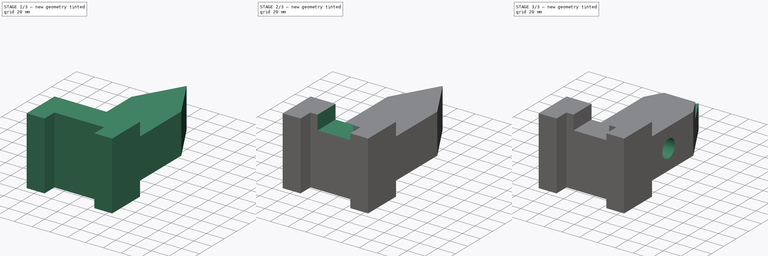
[diagram: build sequence overview — one tinted view per stage of 3, left to right]
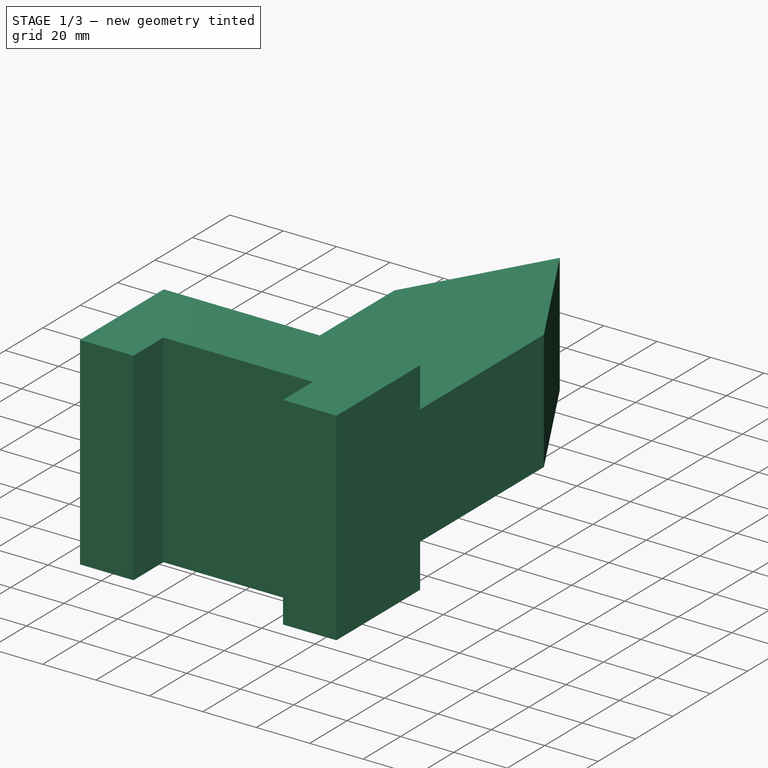
[diagram: stage 1 of 3 — iso view after this stage's code; geometry added in this stage tinted green]
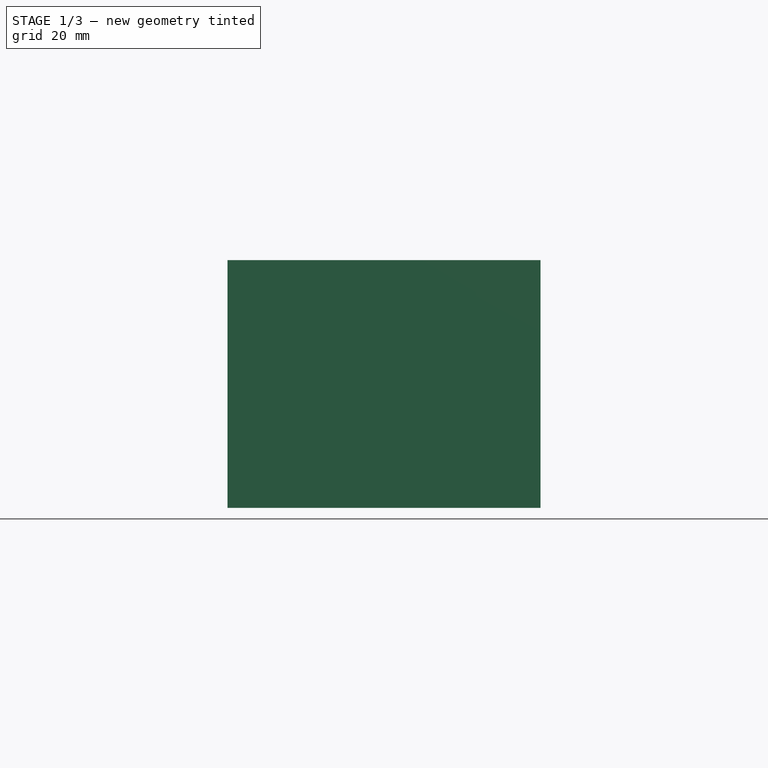
[diagram: stage 1 of 3 — front view after this stage's code; geometry added in this stage tinted green]
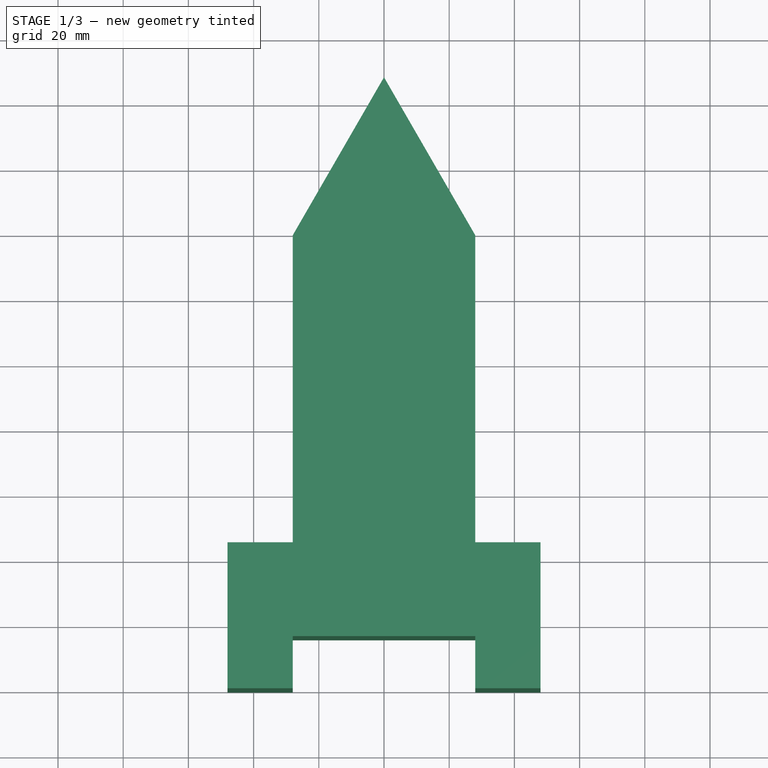
[diagram: stage 1 of 3 — top view after this stage's code; geometry added in this stage tinted green]
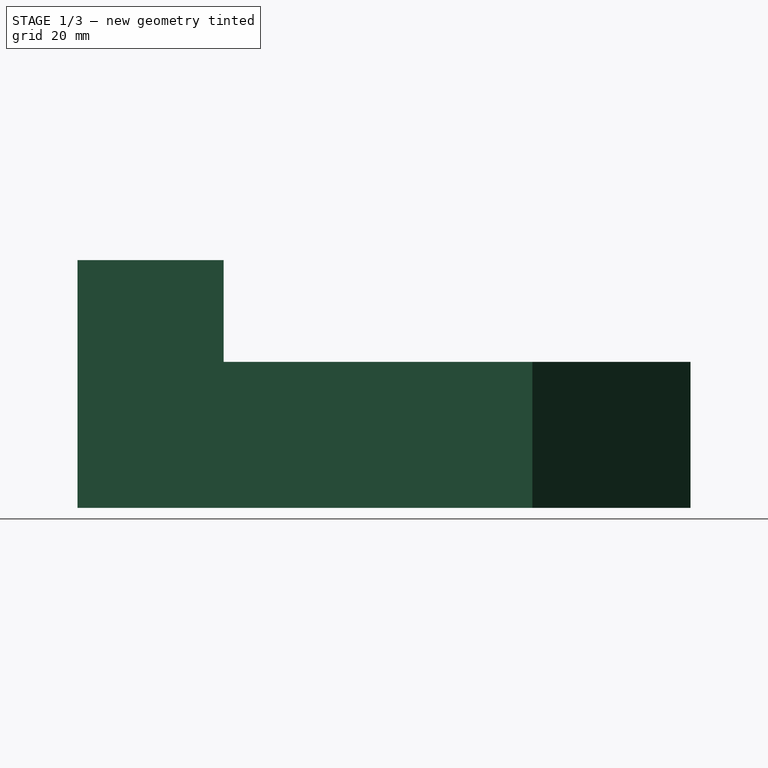
[diagram: stage 1 of 3 — right view after this stage's code; geometry added in this stage tinted green]
FCSTD DOCUMENT  (FreeCAD 0.18R4 (GitTag))
Label: Object12
License: All rights reserved
LicenseURL: http://en.wikipedia.org/wiki/All_rights_reserved
objects: Sketcher::SketchObject×5, PartDesign::Pocket×4, PartDesign::Pad×1, PartDesign::Plane×1, PartDesign::Body×1
note: 17 computed .brp shape members not serialized (recipe doc carries the construction recipe); baked Part::Feature solids carry a one-line shape summary decoded from their .brp

FEATURE [Sketcher::SketchObject] Sketch
  MapMode = 5
  Support = -> [XY_Plane]
  sketch-geometry (13):
    g0: LineSegment StartX=-48 StartY=44.8 StartZ=0 EndX=-48 EndY=0 EndZ=0
    g1: LineSegment StartX=-48 StartY=0 StartZ=0 EndX=-28 EndY=0 EndZ=0
    g2: LineSegment StartX=-28 StartY=0 StartZ=0 EndX=-28 EndY=16 EndZ=0
    g3: LineSegment StartX=-28 StartY=16 StartZ=0 EndX=28 EndY=16 EndZ=0
    g4: LineSegment StartX=28 StartY=16 StartZ=0 EndX=28 EndY=0 EndZ=0
    g5: LineSegment StartX=28 StartY=0 StartZ=0 EndX=48 EndY=0 EndZ=0
    g6: LineSegment StartX=48 StartY=0 StartZ=0 EndX=48 EndY=44.8 EndZ=0
    g7: LineSegment StartX=48 StartY=44.8 StartZ=0 EndX=28 EndY=44.8 EndZ=0
    g8: LineSegment StartX=28 StartY=44.8 StartZ=0 EndX=28 EndY=139.503 EndZ=0
    g9: LineSegment StartX=28 StartY=139.503 StartZ=0 EndX=0 EndY=188 EndZ=0
    g10: LineSegment StartX=0 StartY=188 StartZ=0 EndX=-28 EndY=139.503 EndZ=0
    g11: LineSegment StartX=-28 StartY=139.503 StartZ=0 EndX=-28 EndY=44.8 EndZ=0
    g12: LineSegment StartX=-28 StartY=44.8 StartZ=0 EndX=-48 EndY=44.8 EndZ=0
  constraints (35):
    c: Vertical(g0)
    c: Coincident(g0,g1)
    c: Coincident(g1,g2)
    c: Coincident(g2,g3)
    c: Horizontal(g3)
    c: Coincident(g3,g4)
    c: Vertical(g4)
    c: Coincident(g4,g5)
    c: Horizontal(g5)
    c: Coincident(g5,g6)
    c: Vertical(g6)
    c: Coincident(g6,g7)
    c: Horizontal(g7)
    c: Coincident(g7,g8)
    c: Vertical(g8)
    c: Coincident(g8,g9)
    c: PointOnObject(g9,g-2)
    c: Coincident(g9,g10)
    c: Coincident(g10,g11)
    c: Coincident(g11,g12)
    c: Coincident(g12,g0)
    c: Horizontal(g12)
    c: Vertical(g2)
    c: Symmetric(g0,g5,g-2)
    c: Symmetric(g1,g4,g-2)
    c: Symmetric(g11,g7,g-2)
    c: Symmetric(g10,g8,g-2)
    c: Angle(g10,g9) = 1.0472
    c: PointOnObject(g1,g-1)
    c: DistanceX(g0,g5) = 96
    c: DistanceX(g1,g4) = 56
    c: DistanceX(g11,g7) = 56
    c: DistanceY(g0,g9) = 188
    c: DistanceY(g0,g0) = 44.8
    c: DistanceY(g3,g6) = 28.8
FEATURE [PartDesign::Pad] Pad
  Length = 76
  Length2 = 100
  Profile = -> Sketch
  Type = 0
FEATURE [PartDesign::Plane] DatumPlane
  AttachmentOffset = pos=(0,0,-188) rot=(0,0,1;0rad)
  Length = 114.173
  MapMode = 5
  Placement = pos=(0,188,-4.17e-14) rot=(1,0,0;1.5708rad)
  ResizeMode = 0
  Support = -> [Pad]
  Width = 104.173
FEATURE [Sketcher::SketchObject] Sketch001
  MapMode = 5
  Placement = pos=(0,188,-4.17e-14) rot=(1,0,0;1.5708rad)
  Support = -> [DatumPlane]
  sketch-geometry (8):
    g0: LineSegment StartX=48 StartY=76 StartZ=0 EndX=-48 EndY=76 EndZ=0
    g1: LineSegment StartX=-48 StartY=76 StartZ=0 EndX=-48 EndY=0 EndZ=0
    g2: LineSegment StartX=-48 StartY=0 StartZ=0 EndX=-28 EndY=0 EndZ=0
    g3: LineSegment StartX=-28 StartY=0 StartZ=0 EndX=-28 EndY=44.8 EndZ=0
    g4: LineSegment StartX=-28 StartY=44.8 StartZ=0 EndX=28 EndY=44.8 EndZ=0
    g5: LineSegment StartX=28 StartY=44.8 StartZ=0 EndX=28 EndY=0 EndZ=0
    g6: LineSegment StartX=28 StartY=0 StartZ=0 EndX=48 EndY=0 EndZ=0
    g7: LineSegment StartX=48 StartY=0 StartZ=0 EndX=48 EndY=76 EndZ=0
  constraints (20):
    c: Coincident(g0,g1)
    c: Vertical(g1)
    c: Coincident(g1,g2)
    c: Horizontal(g2)
    c: Coincident(g2,g3)
    c: Vertical(g3)
    c: Coincident(g3,g4)
    c: Coincident(g4,g5)
    c: Coincident(g5,g6)
    c: Coincident(g6,g7)
    c: Coincident(g7,g0)
    c: Symmetric(g4,g3,g-2)
    c: Symmetric(g0,g0,g-2)
    c: Symmetric(g6,g1,g-2)
    c: Symmetric(g5,g2,g-2)
    c: DistanceY(g7,g7) = 76
    c: DistanceX(g4,g4) = 56
    c: DistanceY(g4,g0) = 31.2
    c: DistanceX(g0,g0) = 96
    c: PointOnObject(g6,g-1)
FEATURE [PartDesign::Pocket] Pocket
  BaseFeature = -> Pad
  Length = 143.2
  Length2 = 100
  Profile = -> Sketch001
  Reversed = true
  Type = 0
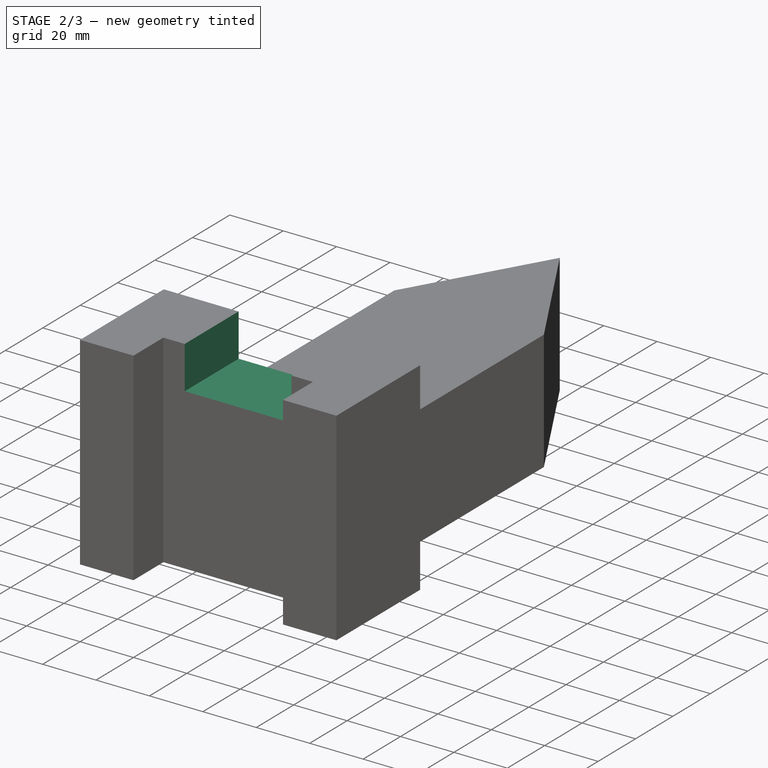
[diagram: stage 2 of 3 — iso view after this stage's code; geometry added in this stage tinted green]
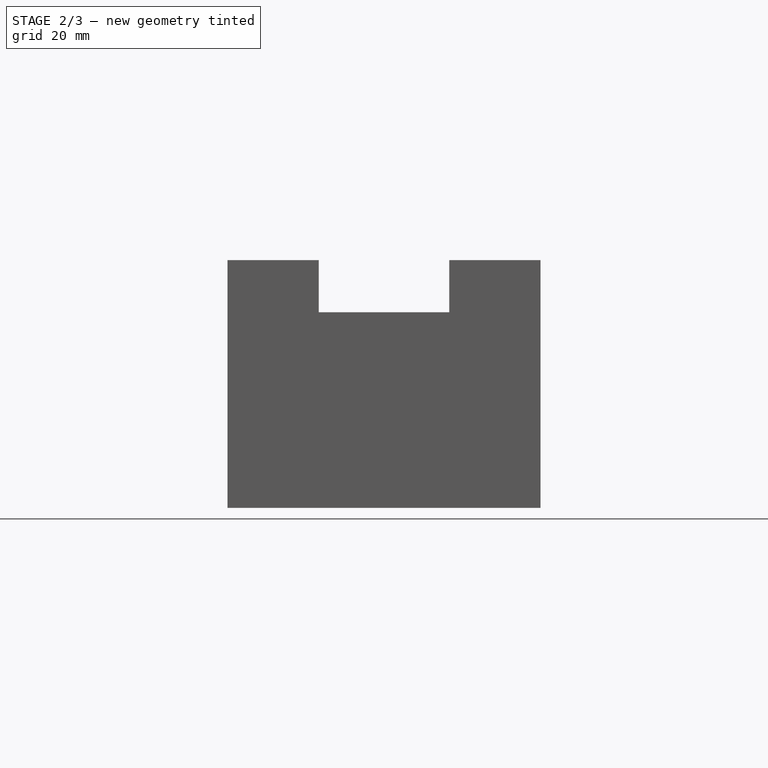
[diagram: stage 2 of 3 — front view after this stage's code; geometry added in this stage tinted green]
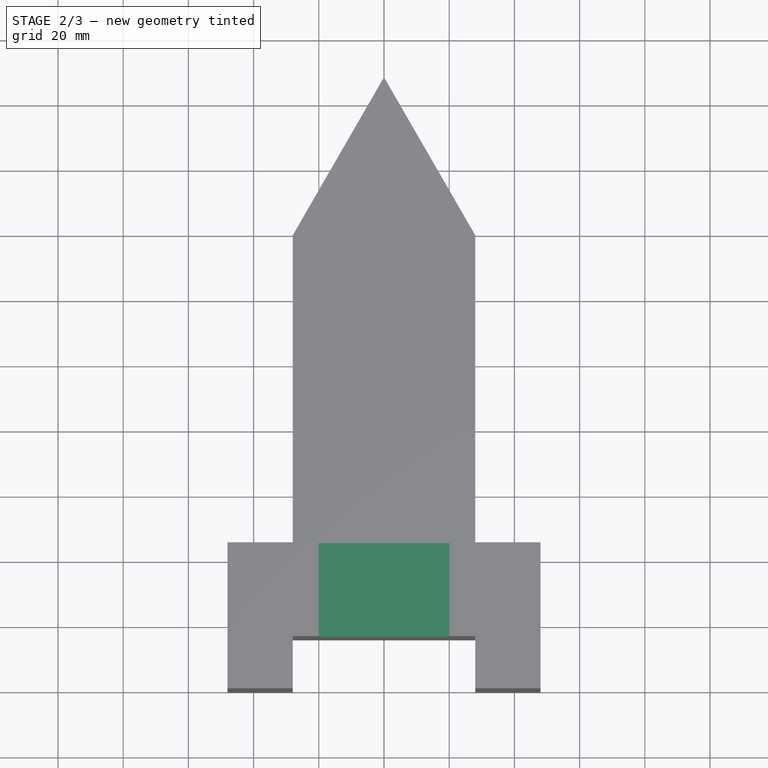
[diagram: stage 2 of 3 — top view after this stage's code; geometry added in this stage tinted green]
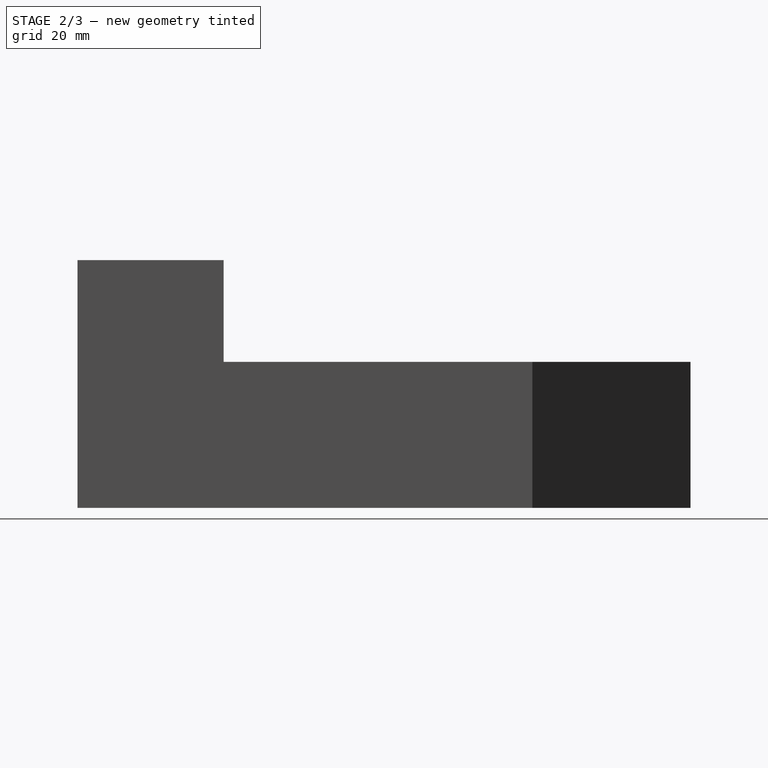
[diagram: stage 2 of 3 — right view after this stage's code; geometry added in this stage tinted green]
FEATURE [Sketcher::SketchObject] Sketch002
  MapMode = 5
  Placement = pos=(0,44.8,-1.61e-14) rot=(0,0.707107,0.707107;3.14159rad)
  Support = -> [Pocket]
  sketch-geometry (4):
    g0: LineSegment StartX=-20 StartY=76 StartZ=0 EndX=20 EndY=76 EndZ=0
    g1: LineSegment StartX=20 StartY=76 StartZ=0 EndX=20 EndY=60 EndZ=0
    g2: LineSegment StartX=20 StartY=60 StartZ=0 EndX=-20 EndY=60 EndZ=0
    g3: LineSegment StartX=-20 StartY=60 StartZ=0 EndX=-20 EndY=76 EndZ=0
  constraints (11):
    c: Coincident(g0,g1)
    c: Coincident(g1,g2)
    c: Coincident(g2,g3)
    c: Coincident(g3,g0)
    c: Horizontal(g0)
    c: Vertical(g1)
    c: Vertical(g3)
    c: Symmetric(g1,g2,g-2)
    c: DistanceY(g-1,g1) = 60
    c: DistanceY(g-1,g0) = 76
    c: DistanceX(g0,g0) = 40
FEATURE [PartDesign::Pocket] Pocket001
  BaseFeature = -> Pocket
  Length = 5
  Length2 = 100
  Profile = -> Sketch002
  Type = 1
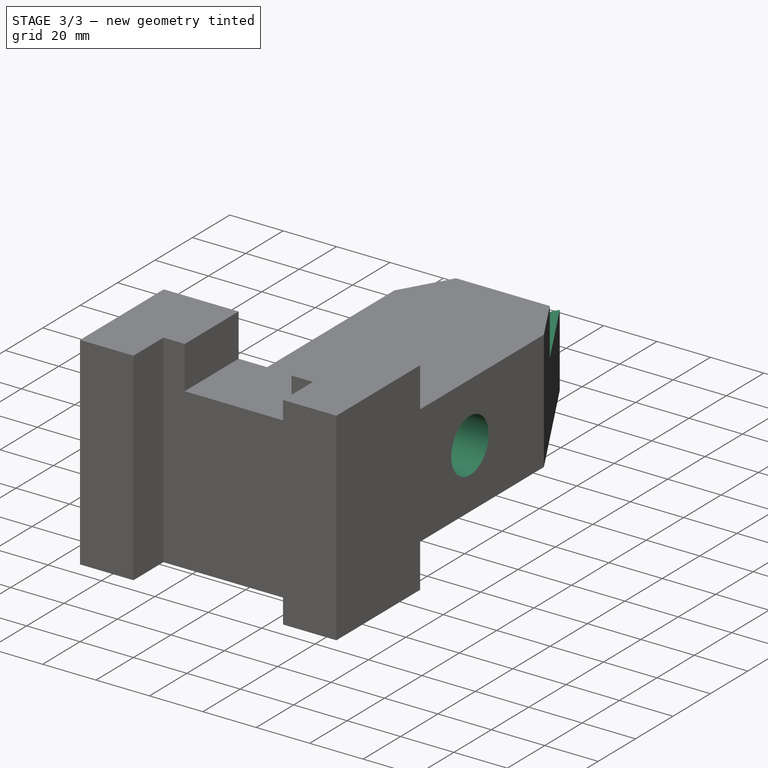
[diagram: stage 3 of 3 — iso view after this stage's code; geometry added in this stage tinted green]
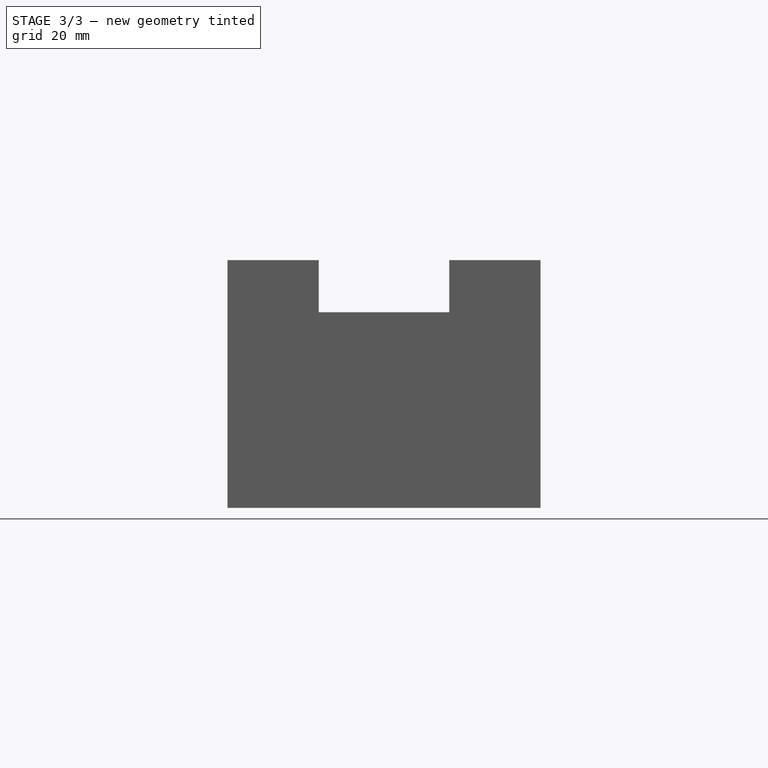
[diagram: stage 3 of 3 — front view after this stage's code; geometry added in this stage tinted green]
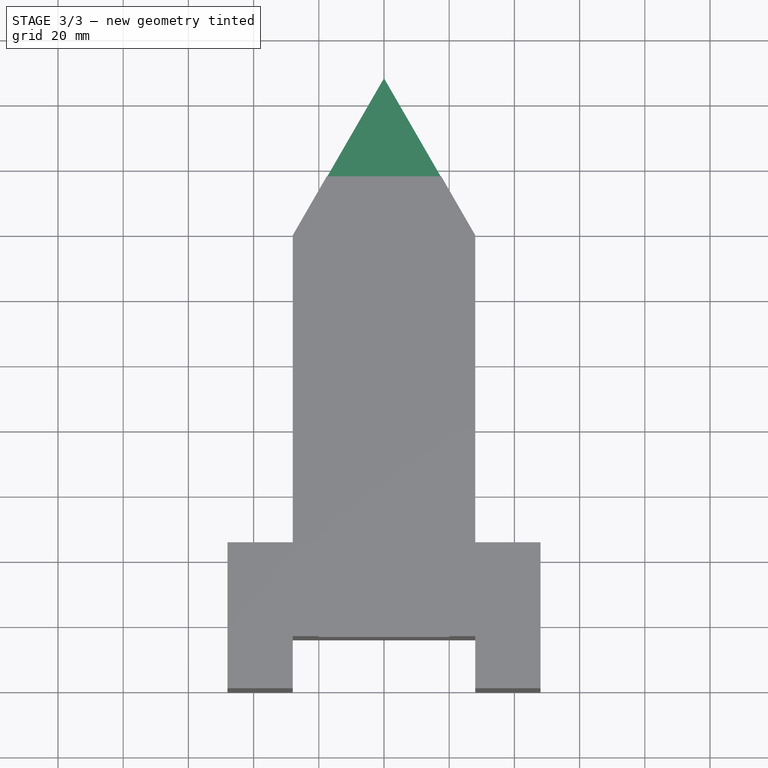
[diagram: stage 3 of 3 — top view after this stage's code; geometry added in this stage tinted green]
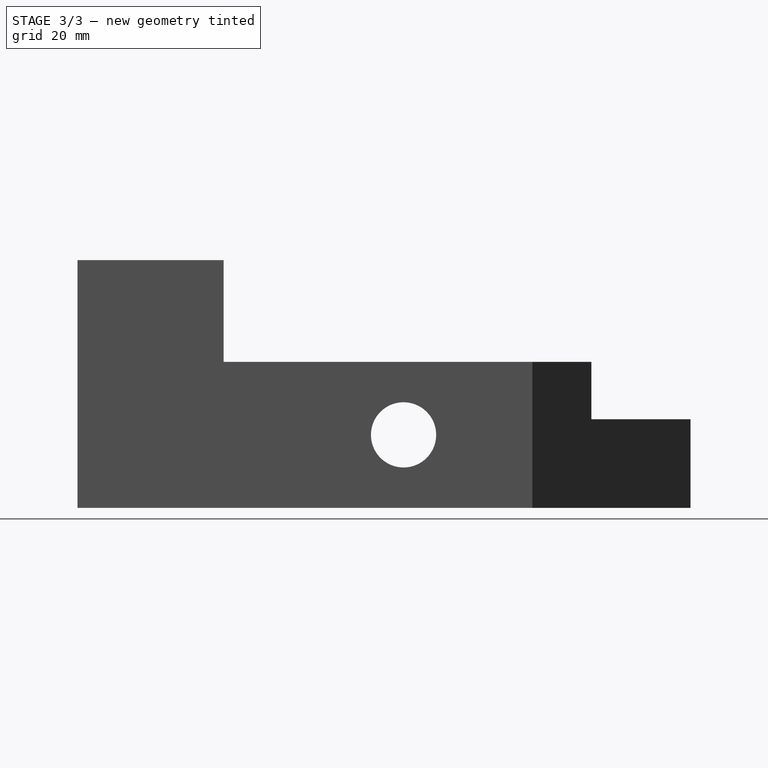
[diagram: stage 3 of 3 — right view after this stage's code; geometry added in this stage tinted green]
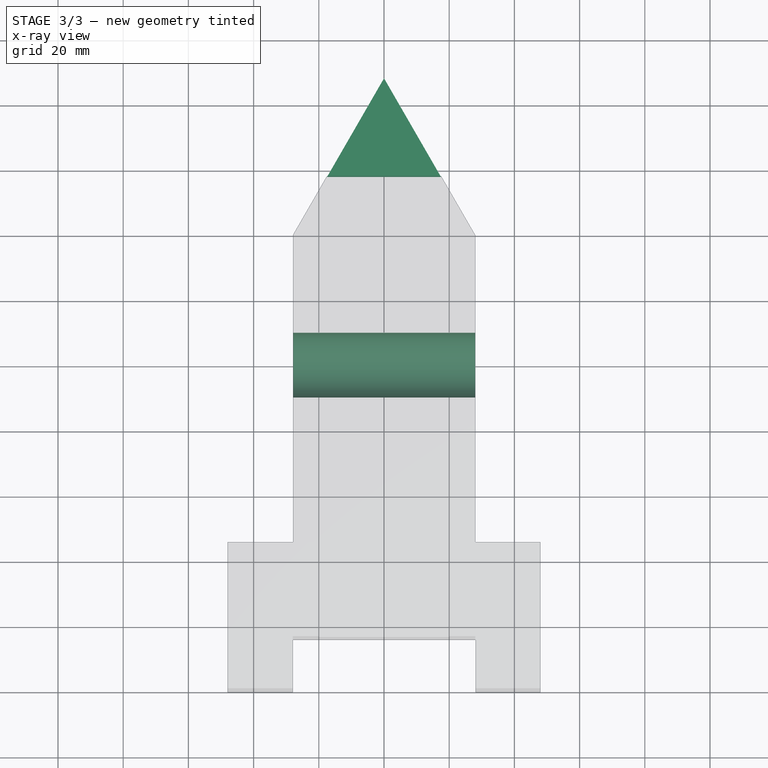
[diagram: stage 3 of 3 — x-ray composite at the top view; earlier geometry ghosted, this stage's added geometry solid]
FEATURE [Sketcher::SketchObject] Sketch003
  MapMode = 5
  Placement = pos=(0,9.9e-15,44.8) rot=(0,0,1;0rad)
  Support = -> [Pocket001]
  sketch-geometry (3):
    g0: LineSegment StartX=0 StartY=188 StartZ=0 EndX=-17.5514 EndY=157.6 EndZ=0
    g1: LineSegment StartX=-17.5514 StartY=157.6 StartZ=0 EndX=17.5514 EndY=157.6 EndZ=0
    g2: LineSegment StartX=17.5514 StartY=157.6 StartZ=0 EndX=0 EndY=188 EndZ=0
  constraints (8):
    c: PointOnObject(g0,g-2)
    c: Coincident(g0,g1)
    c: Coincident(g1,g2)
    c: Coincident(g2,g0)
    c: Symmetric(g0,g1,g-2)
    c: Angle(g0,g2) = 1.0472
    c: DistanceY(g-1,g0) = 188
    c: DistanceY(g1,g0) = 30.4
FEATURE [PartDesign::Pocket] Pocket002
  BaseFeature = -> Pocket001
  Length = 17.6
  Length2 = 100
  Profile = -> Sketch003
  Type = 0
FEATURE [Sketcher::SketchObject] Sketch004
  MapMode = 5
  Placement = pos=(28,0,0) rot=(0.57735,0.57735,0.57735;2.0944rad)
  Support = -> [Pocket002]
  sketch-geometry (1):
    g0: Circle CenterX=100 CenterY=22.4 CenterZ=0 NormalX=0 NormalY=0 NormalZ=1 AngleXU=0 Radius=10
  constraints (3):
    c: Radius(g0) = 10
    c: DistanceX(g-1,g0) = 100
    c: DistanceY(g-1,g0) = 22.4
FEATURE [PartDesign::Pocket] Pocket003
  BaseFeature = -> Pocket002
  Length = 5
  Length2 = 100
  Profile = -> Sketch004
  Type = 1
FEATURE [PartDesign::Body] Body
  Group = -> [Sketch,Pad,DatumPlane,Sketch001,Pocket,Sketch002,Pocket001,Sketch003,Pocket002,Sketch004,Pocket003]
  Origin = -> Origin
  Tip = -> Pocket003
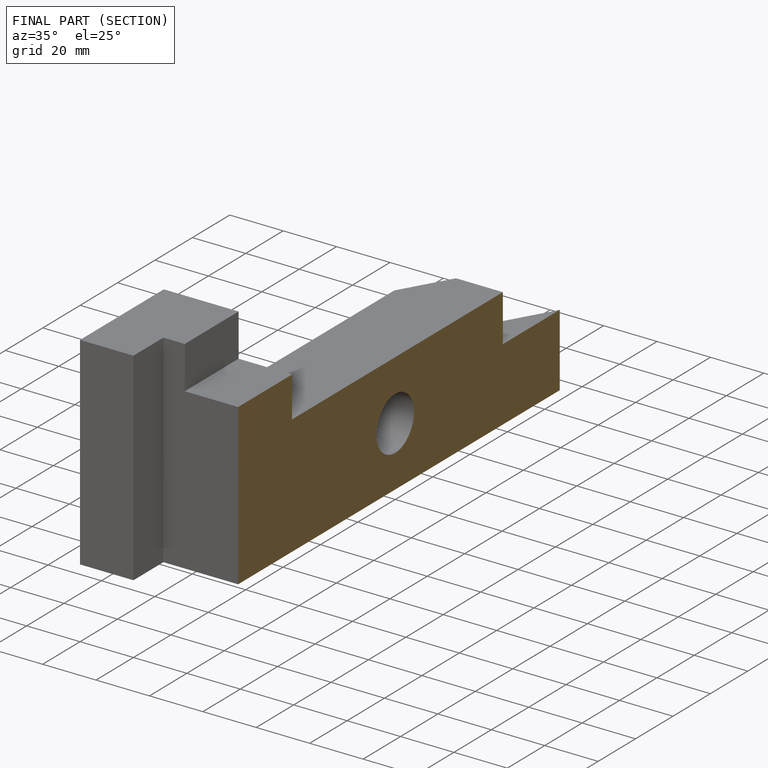
[diagram: finished part — half-section view (interior)]
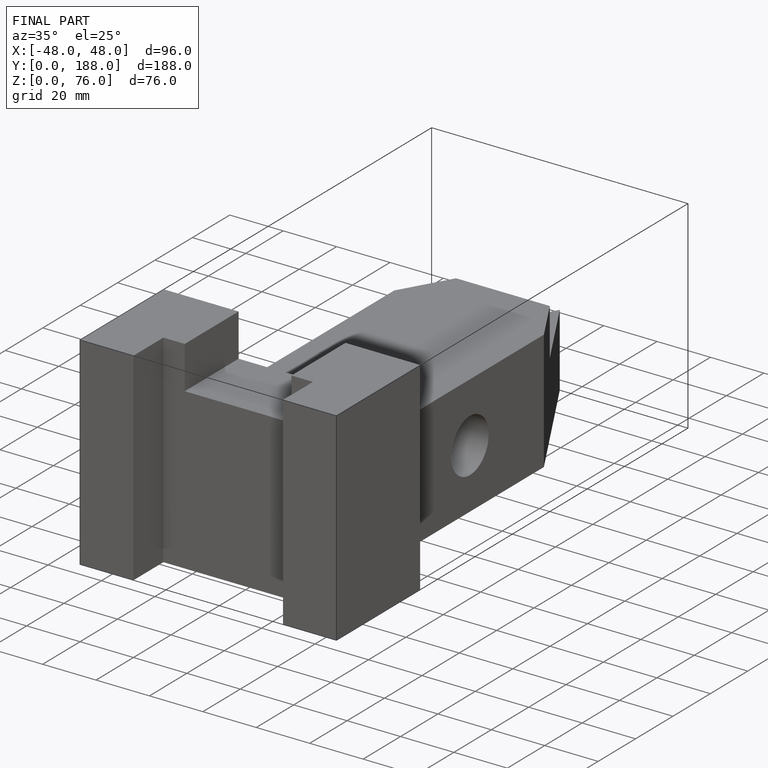
[diagram: finished part — iso view with bounding-box wireframe]
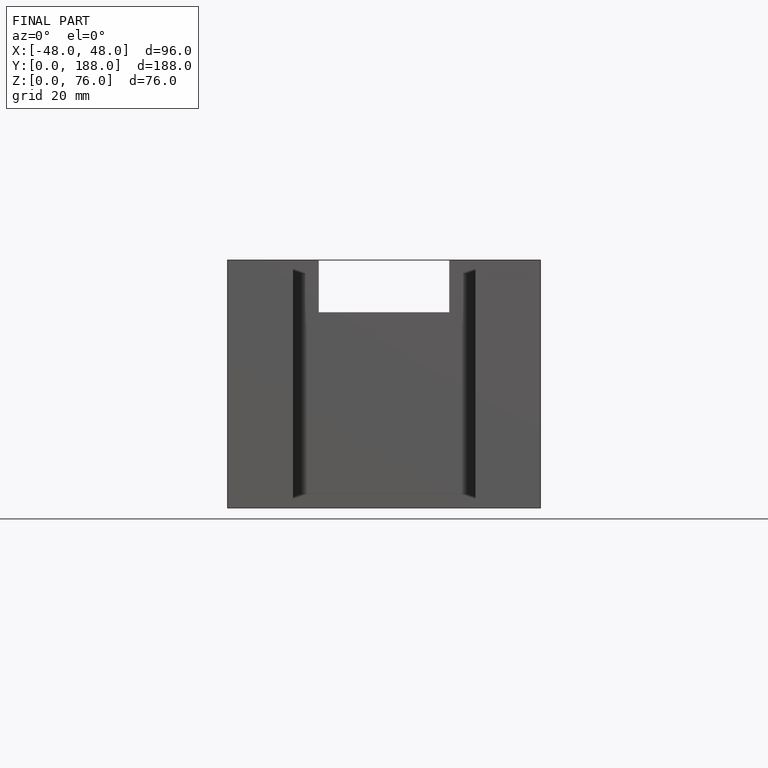
[diagram: finished part — front view with bounding-box wireframe]
